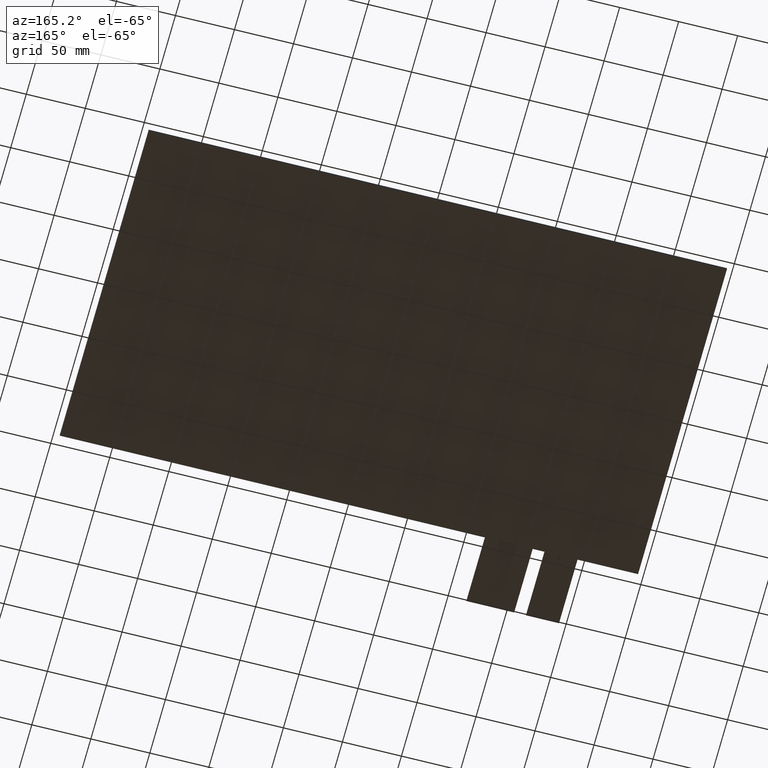
[diagram: clean part render]
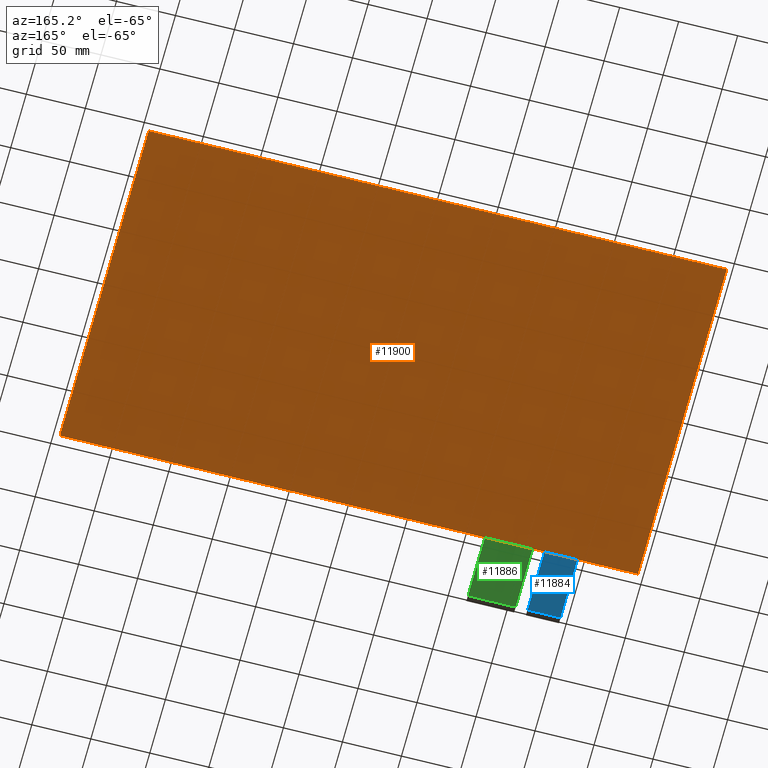
[diagram: same view with three faces highlighted in distinct colors, each labeled with its STEP entity id]
A machine part, auxiliary view with three faces highlighted in distinct colors.
Their STEP definitions:

[orange] entity #11900 — the highlighted planar face has unit normal (0, 0, -1).
#610=PLANE('',#12496);
#1178=FACE_OUTER_BOUND('',#1748,.T.);
#1748=EDGE_LOOP('',(#11322,#11323,#11324,#11325));
#3424=LINE('',#18706,#5108);
#3427=LINE('',#18712,#5111);
#3430=LINE('',#18718,#5114);
#3433=LINE('',#18722,#5117);
#5108=VECTOR('',#15316,10.);
#5111=VECTOR('',#15321,10.);
#5114=VECTOR('',#15326,10.);
#5117=VECTOR('',#15331,10.);
#6248=VERTEX_POINT('',#18703);
#6249=VERTEX_POINT('',#18705);
#6251=VERTEX_POINT('',#18711);
#6253=VERTEX_POINT('',#18717);
#7936=EDGE_CURVE('',#6249,#6248,#3424,.T.);
#7939=EDGE_CURVE('',#6251,#6249,#3427,.T.);
#7942=EDGE_CURVE('',#6253,#6251,#3430,.T.);
#7945=EDGE_CURVE('',#6248,#6253,#3433,.T.);
#11322=ORIENTED_EDGE('',*,*,#7945,.T.);
#11323=ORIENTED_EDGE('',*,*,#7942,.T.);
#11324=ORIENTED_EDGE('',*,*,#7939,.T.);
#11325=ORIENTED_EDGE('',*,*,#7936,.T.);
#11900=ADVANCED_FACE('',(#1178),#610,.T.);
#12496=AXIS2_PLACEMENT_3D('',#18723,#15332,#15333);
#15316=DIRECTION('',(0.,-1.,0.));
#15321=DIRECTION('',(1.,0.,0.));
#15326=DIRECTION('',(-3.73969860926368E-16,1.,0.));
#15331=DIRECTION('',(-1.,-1.0875654118777E-16,0.));
#15332=DIRECTION('center_axis',(0.,0.,-1.));
#15333=DIRECTION('ref_axis',(-1.,0.,0.));
#18703=CARTESIAN_POINT('',(243.51,-145.49,-2.35));
#18705=CARTESIAN_POINT('',(243.51,139.51,-2.35));
#18706=CARTESIAN_POINT('',(243.51,-145.49,-2.35));
#18711=CARTESIAN_POINT('',(-246.49,139.51,-2.35));
#18712=CARTESIAN_POINT('',(243.51,139.51,-2.35));
#18717=CARTESIAN_POINT('',(-246.49,-145.49,-2.35));
#18718=CARTESIAN_POINT('',(-246.49,139.51,-2.35));
#18722=CARTESIAN_POINT('',(-246.49,-145.49,-2.35));
#18723=CARTESIAN_POINT('Origin',(-1.49000000000008,-2.98999999999998,-2.35));

[blue] entity #11884 — the highlighted planar face has unit normal (0, 0, -1).
#594=PLANE('',#12480);
#1162=FACE_OUTER_BOUND('',#1730,.T.);
#1730=EDGE_LOOP('',(#11230,#11231,#11232,#11233));
#3389=LINE('',#18635,#5073);
#3394=LINE('',#18645,#5078);
#3395=LINE('',#18647,#5079);
#3396=LINE('',#18648,#5080);
#5073=VECTOR('',#15253,10.);
#5078=VECTOR('',#15262,10.);
#5079=VECTOR('',#15263,10.);
#5080=VECTOR('',#15264,10.);
#6226=VERTEX_POINT('',#18632);
#6227=VERTEX_POINT('',#18634);
#6230=VERTEX_POINT('',#18644);
#6231=VERTEX_POINT('',#18646);
#7901=EDGE_CURVE('',#6227,#6226,#3389,.T.);
#7906=EDGE_CURVE('',#6226,#6230,#3394,.T.);
#7907=EDGE_CURVE('',#6231,#6230,#3395,.T.);
#7908=EDGE_CURVE('',#6231,#6227,#3396,.T.);
#11230=ORIENTED_EDGE('',*,*,#7901,.T.);
#11231=ORIENTED_EDGE('',*,*,#7906,.T.);
#11232=ORIENTED_EDGE('',*,*,#7907,.F.);
#11233=ORIENTED_EDGE('',*,*,#7908,.T.);
#11884=ADVANCED_FACE('',(#1162),#594,.T.);
#12480=AXIS2_PLACEMENT_3D('',#18643,#15260,#15261);
#15253=DIRECTION('',(-1.,0.,0.));
#15260=DIRECTION('center_axis',(0.,0.,-1.));
#15261=DIRECTION('ref_axis',(-1.,0.,0.));
#15262=DIRECTION('',(-5.9211894646675E-16,1.,0.));
#15263=DIRECTION('',(-1.,-1.0875654118777E-16,0.));
#15264=DIRECTION('',(0.,-1.,0.));
#18632=CARTESIAN_POINT('',(-195.35,-200.49,-1.2));
#18634=CARTESIAN_POINT('',(-167.35,-200.49,-1.2));
#18635=CARTESIAN_POINT('',(-174.35,-200.49,-1.2));
#18643=CARTESIAN_POINT('Origin',(-181.35,-175.49,-1.2));
#18644=CARTESIAN_POINT('',(-195.35,-145.49,-1.2));
#18645=CARTESIAN_POINT('',(-195.35,-145.49,-1.2));
#18646=CARTESIAN_POINT('',(-167.35,-145.49,-1.2));
#18647=CARTESIAN_POINT('',(31.08,-145.49,-1.2));
#18648=CARTESIAN_POINT('',(-167.35,-205.49,-1.2));

[green] entity #11886 — the highlighted planar face has unit normal (0, 0, -1).
#596=PLANE('',#12482);
#1164=FACE_OUTER_BOUND('',#1732,.T.);
#1732=EDGE_LOOP('',(#11242,#11243,#11244,#11245));
#3392=LINE('',#18641,#5076);
#3401=LINE('',#18659,#5085);
#3402=LINE('',#18661,#5086);
#3403=LINE('',#18662,#5087);
#5076=VECTOR('',#15258,10.);
#5085=VECTOR('',#15273,10.);
#5086=VECTOR('',#15274,10.);
#5087=VECTOR('',#15275,10.);
#6228=VERTEX_POINT('',#18638);
#6229=VERTEX_POINT('',#18640);
#6235=VERTEX_POINT('',#18658);
#6236=VERTEX_POINT('',#18660);
#7904=EDGE_CURVE('',#6229,#6228,#3392,.T.);
#7913=EDGE_CURVE('',#6228,#6235,#3401,.T.);
#7914=EDGE_CURVE('',#6236,#6235,#3402,.T.);
#7915=EDGE_CURVE('',#6236,#6229,#3403,.T.);
#11242=ORIENTED_EDGE('',*,*,#7904,.T.);
#11243=ORIENTED_EDGE('',*,*,#7913,.T.);
#11244=ORIENTED_EDGE('',*,*,#7914,.F.);
#11245=ORIENTED_EDGE('',*,*,#7915,.T.);
#11886=ADVANCED_FACE('',(#1164),#596,.T.);
#12482=AXIS2_PLACEMENT_3D('',#18657,#15271,#15272);
#15258=DIRECTION('',(-1.,0.,0.));
#15271=DIRECTION('center_axis',(0.,0.,-1.));
#15272=DIRECTION('ref_axis',(-1.,0.,0.));
#15273=DIRECTION('',(-2.96059473233375E-16,1.,0.));
#15274=DIRECTION('',(-1.,-1.0875654118777E-16,0.));
#15275=DIRECTION('',(0.,-1.,0.));
#18638=CARTESIAN_POINT('',(-157.35,-200.49,-1.2));
#18640=CARTESIAN_POINT('',(-116.85,-200.49,-1.2));
#18641=CARTESIAN_POINT('',(-126.975,-200.49,-1.2));
#18657=CARTESIAN_POINT('Origin',(-137.1,-175.49,-1.2));
#18658=CARTESIAN_POINT('',(-157.35,-145.49,-1.2));
#18659=CARTESIAN_POINT('',(-157.35,-145.49,-1.2));
#18660=CARTESIAN_POINT('',(-116.85,-145.49,-1.2));
#18661=CARTESIAN_POINT('',(53.205,-145.49,-1.2));
#18662=CARTESIAN_POINT('',(-116.85,-205.49,-1.2));